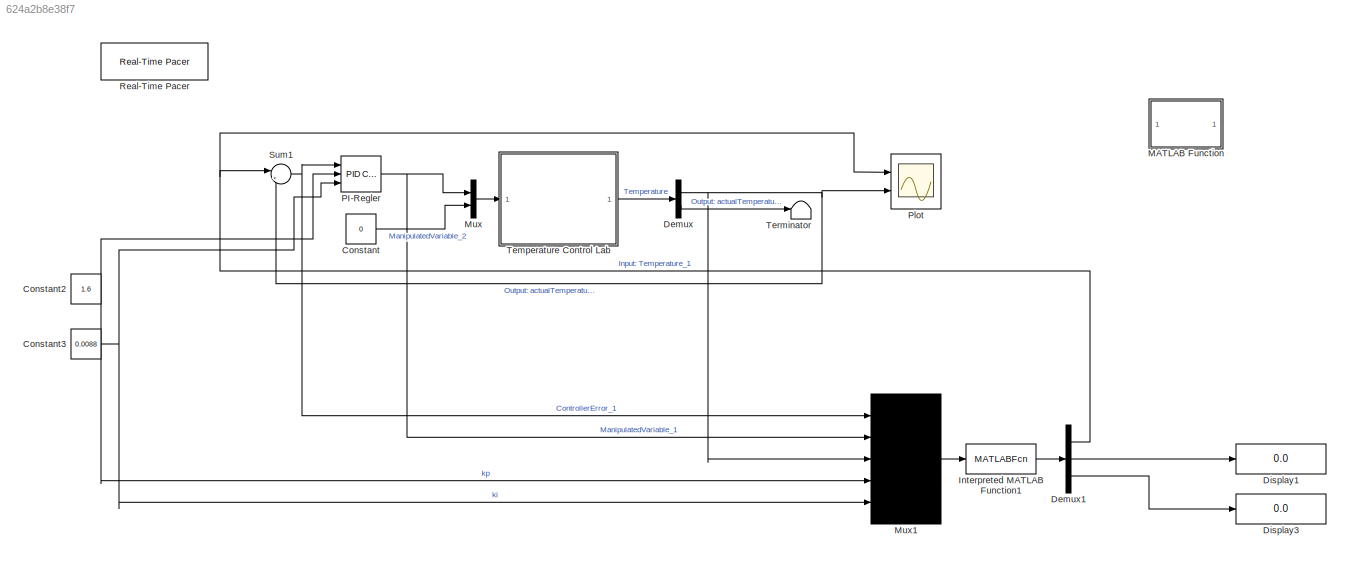
MODEL slx_624a2b8e38f7
KIND model
CONFIG AbsTol = auto
CONFIG EnableMultiTasking = off
CONFIG FixedStep = 0.1
CONFIG MaxStep = auto
CONFIG MinStep = auto
CONFIG PreLoadFcn = set_point=30;\nkp=1.6;\nki=1/114.07;\n
CONFIG RelTol = 1e-3
CONFIG SampleTimeConstraint = Unconstrained
CONFIG SolverName = FixedStepAuto
CONFIG StartTime = 0.0
CONFIG StopTime = 900
BLOCK [Constant] Constant
  Value = 0
BLOCK [Constant] Constant2
  Value = 1.6
BLOCK [Constant] Constant3
  Value = 0.0088
BLOCK [Demux] Demux
  Outputs = 2
  Ports = [1, 2]
BLOCK [Demux] Demux1
  Outputs = 3
  Ports = [1, 3]
BLOCK [Display] Display1
  Decimation = 1
  Ports = [1]
BLOCK [Display] Display3
  Decimation = 1
  Ports = [1]
BLOCK [MATLABFcn] Interpreted MATLAB Function1
  MATLABFcn = opcua_read_write_data_to_server
  OutputDimensions = 3
  Ports = [1, 1]
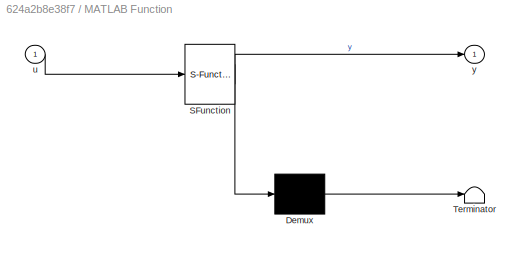
BLOCK [SubSystem] MATLAB Function
  Commented = on
  ErrorFcn = Stateflow.Translate.translate
  PermitHierarchicalResolution = ExplicitOnly
  Ports = [1, 1]
  RequestExecContextInheritance = off
  SFBlockType = MATLAB Function
  TreatAsAtomicUnit = on
BLOCK [Demux] MATLAB Function/ Demux 
  Outputs = 1
  Ports = [1, 1]
BLOCK [S-Function] MATLAB Function/ SFunction 
  EnableBusSupport = off
  FunctionName = sf_sfun
  PortCounts = [1 2]
  Ports = [1, 2]
  SFcnIsStateOwnerBlock = off
  SFunctionDeploymentMode = off
  Tag = Stateflow S-Function 2
BLOCK [Terminator] MATLAB Function/ Terminator 
BLOCK [Inport] MATLAB Function/u
BLOCK [Outport] MATLAB Function/y
BLOCK [Mux] Mux
  DisplayOption = bar
  Inputs = 2
  Ports = [2, 1]
BLOCK [Mux] Mux1
  DisplayOption = signals
  Inputs = 5
  Ports = [5, 1]
BLOCK [Reference] PI-Regler  REF=slpidlib/PID Controller
  Ports = [3, 1]
  SourceBlock = slpidlib/PID Controller
  SourceProductBaseCode = SL
  SourceType = PID 1dof
BLOCK [Scope] Plot
  Floating = off
  NumInputPorts = 2
  Ports = [2]
  ScopeSpecificationString = Simulink.scopes.TimeScopeBlockCfg('CurrentConfiguration', extmgr.ConfigurationSet(extmgr.Configuration('Core','General UI',true),extmgr.Configuration('Core','Source UI',true),extmgr.Configuration('Sources','WiredSimulink',true,'DataLoggingLimitDataPoints',true,'DataLoggingSaveFormat','Array','DataLoggingDecimation','1','DataLoggingDecimateData',true),extmgr.Configuration('Visuals','Time Domain',tr...<+1648ch>
BLOCK [Reference] Real-Time Pacer  REF=realtime_pacer_lib/Real-Time Pacer
  Ports = []
  SourceBlock = realtime_pacer_lib/Real-Time Pacer
  SourceType = RealTime_Pacer
BLOCK [Sum] Sum1
  Inputs = |+-
  Ports = [2, 1]
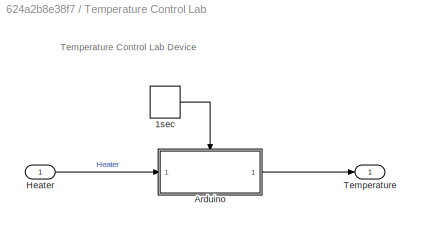
BLOCK [SubSystem] Temperature Control Lab
  Ports = [1, 1]
  RequestExecContextInheritance = off
BLOCK [DiscretePulseGenerator] Temperature Control Lab/1sec
  Period = 1
  Ports = [0, 1]
  PulseType = Time based
  PulseWidth = 50
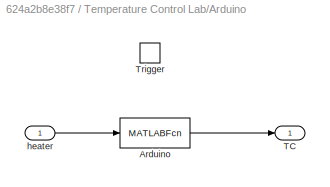
BLOCK [SubSystem] Temperature Control Lab/Arduino
  Ports = [1, 1, 0, 1]
  RequestExecContextInheritance = off
  TreatAsAtomicUnit = on
BLOCK [MATLABFcn] Temperature Control Lab/Arduino/Arduino
  MATLABFcn = arduino_tclab
  Ports = [1, 1]
BLOCK [Outport] Temperature Control Lab/Arduino/TC
  InitialOutput = [23 23]
  VectorParamsAs1DForOutWhenUnconnected = off
BLOCK [TriggerPort] Temperature Control Lab/Arduino/Trigger
  Ports = []
  StatesWhenEnabling = held
  VariantControl = Variant
BLOCK [Inport] Temperature Control Lab/Arduino/heater
  LatchByDelayingOutsideSignal = on
BLOCK [Inport] Temperature Control Lab/Heater
BLOCK [Outport] Temperature Control Lab/Temperature
  VectorParamsAs1DForOutWhenUnconnected = off
BLOCK [Terminator] Terminator
ANNOTATION Temperature Control Lab: Temperature Control Lab Device
NET Constant2:1 -> Mux1:4, PI-Regler:2
NET Constant3:1 -> Mux1:5, PI-Regler:3
LINE Constant:1 -> Mux:2
NET Demux1:1 -> Plot:1, Sum1:1
LINE Demux1:2 -> Display1:1
LINE Demux1:3 -> Display3:1
NET Demux:1 -> Mux1:3, Plot:2, Sum1:2
LINE Demux:2 -> Terminator:1
LINE Interpreted MATLAB Function1:1 -> Demux1:1
LINE Mux1:1 -> Interpreted MATLAB Function1:1
LINE Mux:1 -> Temperature Control Lab:1
NET PI-Regler:1 -> Mux1:2, Mux:1
NET Sum1:1 -> Mux1:1, PI-Regler:1
LINE Temperature Control Lab/1sec:1 -> Temperature Control Lab/Arduino:trigger
LINE Temperature Control Lab/Arduino/Arduino:1 -> Temperature Control Lab/Arduino/TC:1
LINE Temperature Control Lab/Arduino/heater:1 -> Temperature Control Lab/Arduino/Arduino:1
LINE Temperature Control Lab/Arduino:1 -> Temperature Control Lab/Temperature:1
LINE Temperature Control Lab/Heater:1 -> Temperature Control Lab/Arduino:1
LINE Temperature Control Lab:1 -> Demux:1
note: NET lines group one-source signal fan-out (src -> all destinations, sorted); 1:1 wires keep LINE
CHART MATLAB Function states=1 transitions=1
  STATE_LABEL 'eML_blk_kernel()'
  STATE_LABEL "SCRIPT:\nfunction y = opcua_read_write_data_to_server(u)\n\npersistent uaClient heater_1 input_1 kp ki CO1 CE1\n\nif (isempty(uaClient))\nuaClient = opcua('localhost', 4840);\nsetSecurityModel(uaClient,'None');\nconnect(uaClient);\nheater_1 = findNodeByName(uaClient.Namespace, 'Output: actualTemperature_1');\n%heater_2 = findNodeByName(uaClient.Namespace, 'Output: actualTemperature_2');\ninput_1 = findNodeBy...<+924ch>"
CHART  states=0 transitions=0
